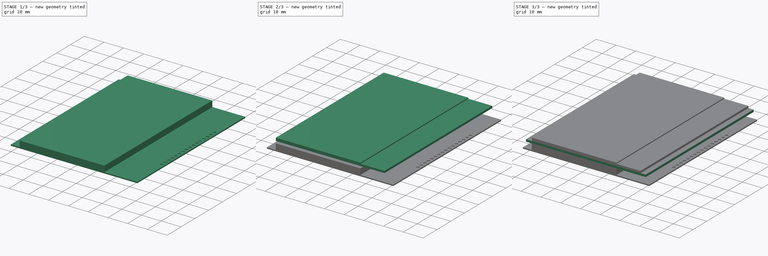
[diagram: build sequence overview — one tinted view per stage of 3, left to right]
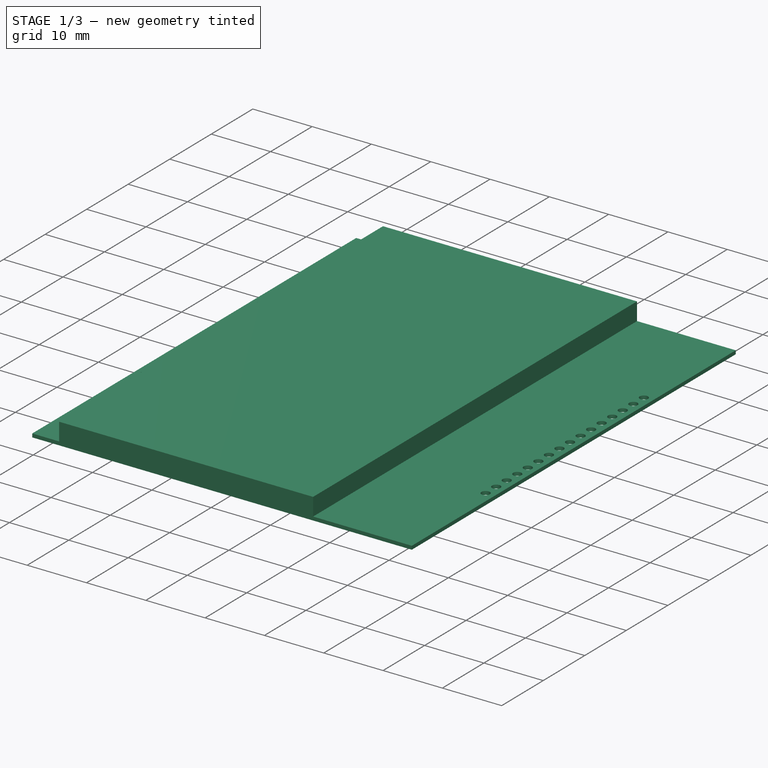
[diagram: stage 1 of 3 — iso view after this stage's code; geometry added in this stage tinted green]
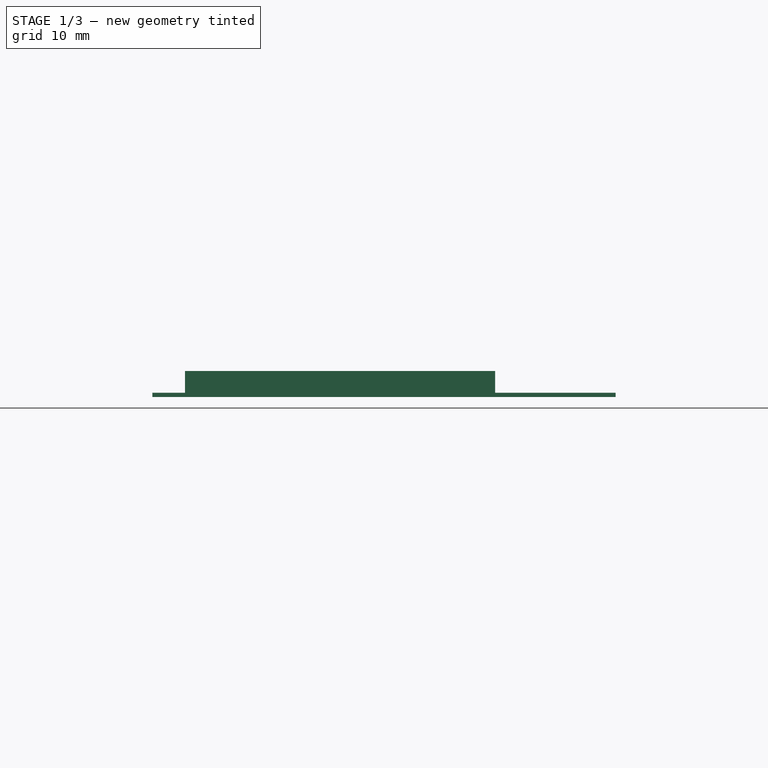
[diagram: stage 1 of 3 — front view after this stage's code; geometry added in this stage tinted green]
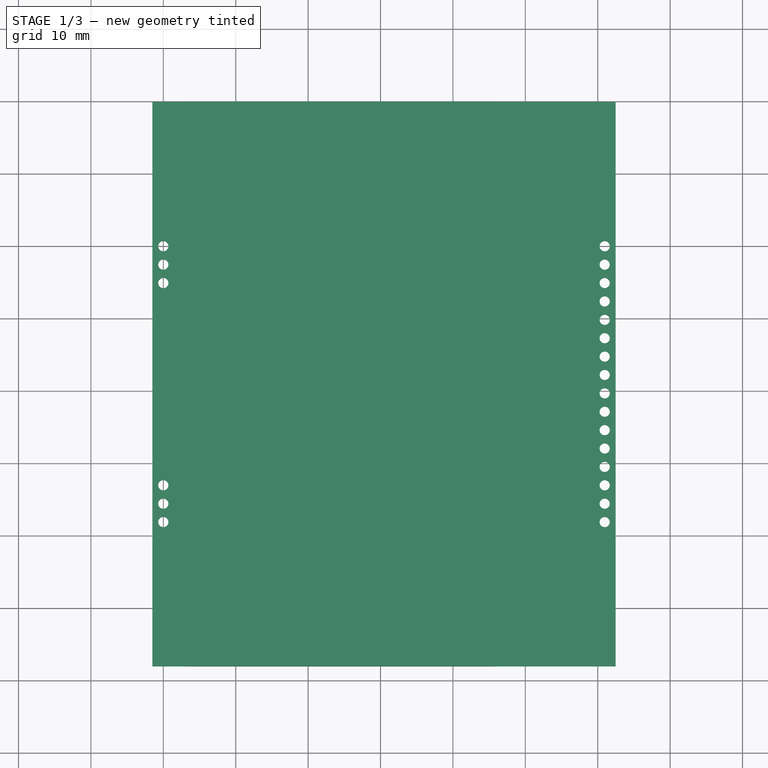
[diagram: stage 1 of 3 — top view after this stage's code; geometry added in this stage tinted green]
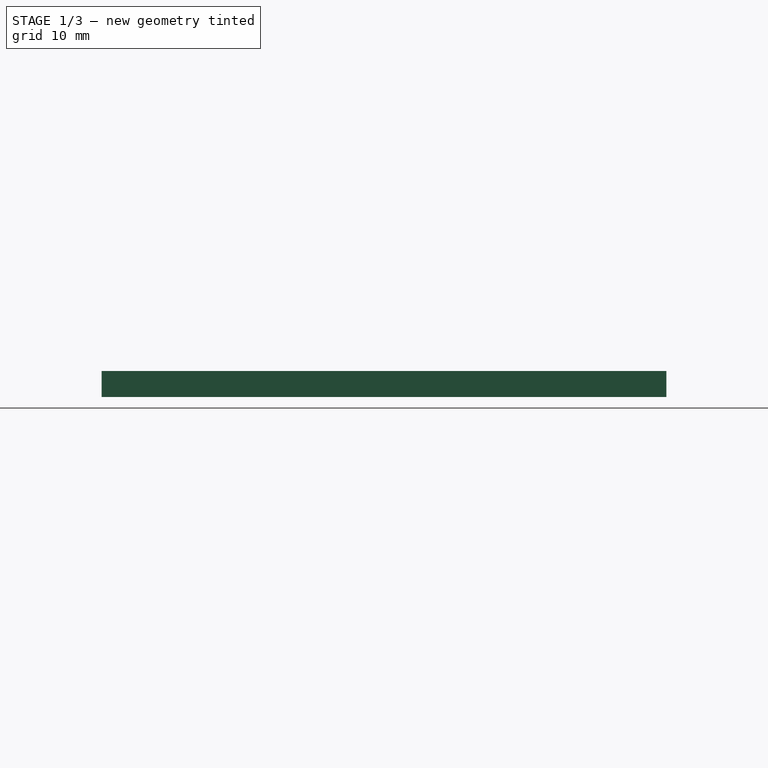
[diagram: stage 1 of 3 — right view after this stage's code; geometry added in this stage tinted green]
FCSTD DOCUMENT  (FreeCAD 0.17R11223 (Git))
Label: EA_DOGXL160-7_Backlight_3
License: Public Domain
LicenseURL: http://en.wikipedia.org/wiki/Public_domain
objects: Part::Feature×22, Part::Box×4, Sketcher::SketchObject×2, PartDesign::Pad×2, App::DocumentObjectGroup×1
note: 32 computed .brp shape members not serialized (recipe doc carries the construction recipe); baked Part::Feature solids carry a one-line shape summary decoded from their .brp

FEATURE [Sketcher::SketchObject] Sketch001
  MapMode = 5
  sketch-geometry (26):
    g0: LineSegment StartX=-1.52 StartY=19.95 StartZ=0 EndX=62.48 EndY=19.95 EndZ=0
    g1: LineSegment StartX=62.48 StartY=19.95 StartZ=0 EndX=62.48 EndY=-58.05 EndZ=0
    g2: LineSegment StartX=62.48 StartY=-58.05 StartZ=0 EndX=-1.52 EndY=-58.05 EndZ=0
    g3: LineSegment StartX=-1.52 StartY=-58.05 StartZ=0 EndX=-1.52 EndY=19.95 EndZ=0
    g4: Circle CenterX=0 CenterY=0 CenterZ=0 NormalX=0 NormalY=0 NormalZ=1 Radius=0.7
    g5: Circle CenterX=0 CenterY=-2.54 CenterZ=0 NormalX=0 NormalY=0 NormalZ=1 Radius=0.7
    g6: Circle CenterX=0 CenterY=-5.08 CenterZ=0 NormalX=0 NormalY=0 NormalZ=1 Radius=0.7
    g7: Circle CenterX=0 CenterY=-33.02 CenterZ=0 NormalX=0 NormalY=0 NormalZ=1 Radius=0.7
    g8: Circle CenterX=0 CenterY=-35.56 CenterZ=0 NormalX=0 NormalY=0 NormalZ=1 Radius=0.7
    g9: Circle CenterX=0 CenterY=-38.1 CenterZ=0 NormalX=0 NormalY=0 NormalZ=1 Radius=0.7
    g10: Circle CenterX=60.96 CenterY=-38.1 CenterZ=0 NormalX=0 NormalY=0 NormalZ=1 Radius=0.7
    g11: Circle CenterX=60.96 CenterY=-35.56 CenterZ=0 NormalX=0 NormalY=0 NormalZ=1 Radius=0.7
    g12: Circle CenterX=60.96 CenterY=-33.02 CenterZ=0 NormalX=0 NormalY=0 NormalZ=1 Radius=0.7
    g13: Circle CenterX=60.96 CenterY=-30.48 CenterZ=0 NormalX=0 NormalY=0 NormalZ=1 Radius=0.7
    g14: Circle CenterX=60.96 CenterY=-27.94 CenterZ=0 NormalX=0 NormalY=0 NormalZ=1 Radius=0.7
    g15: Circle CenterX=60.96 CenterY=-25.4 CenterZ=0 NormalX=0 NormalY=0 NormalZ=1 Radius=0.7
    g16: Circle CenterX=60.96 CenterY=-22.86 CenterZ=0 NormalX=0 NormalY=0 NormalZ=1 Radius=0.7
    g17: Circle CenterX=60.96 CenterY=0 CenterZ=0 NormalX=0 NormalY=0 NormalZ=1 Radius=0.7
    g18: Circle CenterX=60.96 CenterY=-10.16 CenterZ=0 NormalX=0 NormalY=0 NormalZ=1 Radius=0.7
    g19: Circle CenterX=60.96 CenterY=-12.7 CenterZ=0 NormalX=0 NormalY=0 NormalZ=1 Radius=0.7
    g20: Circle CenterX=60.96 CenterY=-2.54 CenterZ=0 NormalX=0 NormalY=0 NormalZ=1 Radius=0.7
    g21: Circle CenterX=60.96 CenterY=-20.32 CenterZ=0 NormalX=0 NormalY=0 NormalZ=1 Radius=0.7
    g22: Circle CenterX=60.96 CenterY=-5.08 CenterZ=0 NormalX=0 NormalY=0 NormalZ=1 Radius=0.7
    g23: Circle CenterX=60.96 CenterY=-7.62 CenterZ=0 NormalX=0 NormalY=0 NormalZ=1 Radius=0.7
    g24: Circle CenterX=60.96 CenterY=-15.24 CenterZ=0 NormalX=0 NormalY=0 NormalZ=1 Radius=0.7
    g25: Circle CenterX=60.96 CenterY=-17.78 CenterZ=0 NormalX=0 NormalY=0 NormalZ=1 Radius=0.7
  constraints (74):
    c: Coincident(g0,g1)
    c: Coincident(g1,g2)
    c: Coincident(g2,g3)
    c: Coincident(g3,g0)
    c: Horizontal(g0)
    c: Horizontal(g2)
    c: Vertical(g1)
    c: Vertical(g3)
    c: DistanceX(g0,g0) = 64
    c: DistanceY(g1,g0) = 78
    c: DistanceX(g0,g-1) = 1.52
    c: DistanceY(g-1,g0) = 19.95
    c: PointOnObject(g4,g-1)
    c: Radius(g4) = 0.7
    c: DistanceX(g-1,g4) = 0
    c: Equal(g4, g5-g9) x5
    c: Equal(g4,g25)
    c: Equal(g4,g24)
    c: Equal(g4,g23)
    c: Equal(g4,g22)
    c: Equal(g4,g21)
    c: Equal(g4,g20)
    c: Equal(g4,g19)
    c: Equal(g4,g18)
    c: Equal(g4,g17)
    c: Equal(g4,g16)
    c: Equal(g4,g15)
    c: Equal(g4,g14)
    c: Equal(g4,g13)
    c: Equal(g4,g12)
    c: Equal(g4,g11)
    c: Equal(g4,g10)
    c: DistanceX(g-1,g5) = 0
    c: DistanceX(g-1,g6) = 0
    c: DistanceX(g-1,g7) = 0
    c: DistanceX(g-1,g8) = 0
    c: DistanceX(g-1,g9) = 0
    c: DistanceY(g9,g-1) = 38.1
    c: DistanceY(g8,g-1) = 35.56
    c: DistanceY(g7,g-1) = 33.02
    c: DistanceY(g10,g-1) = 38.1
    c: DistanceY(g11,g-1) = 35.56
    c: DistanceY(g12,g-1) = 33.02
    c: DistanceY(g13,g-1) = 30.48
    c: DistanceY(g14,g-1) = 27.94
    c: DistanceY(g15,g-1) = 25.4
    c: DistanceY(g16,g-1) = 22.86
    c: DistanceY(g21,g-1) = 20.32
    c: DistanceY(g25,g-1) = 17.78
    c: DistanceY(g24,g-1) = 15.24
    c: DistanceY(g20,g-1) = 2.54
    c: DistanceY(g17,g-1) = 0
    c: DistanceY(g22,g-1) = 5.08
    c: DistanceY(g23,g-1) = 7.62
    c: DistanceY(g18,g-1) = 10.16
    c: DistanceY(g19,g-1) = 12.7
    c: DistanceX(g-1,g17) = 60.96
    c: DistanceX(g-1,g20) = 60.96
    c: DistanceX(g-1,g22) = 60.96
    c: DistanceX(g-1,g23) = 60.96
    c: DistanceX(g-1,g18) = 60.96
    c: DistanceX(g-1,g19) = 60.96
    c: DistanceX(g-1,g24) = 60.96
    c: DistanceX(g-1,g25) = 60.96
    c: DistanceX(g-1,g21) = 60.96
    c: DistanceX(g-1,g16) = 60.96
    c: DistanceX(g-1,g15) = 60.96
    c: DistanceX(g-1,g14) = 60.96
    c: DistanceX(g-1,g13) = 60.96
    c: DistanceX(g-1,g12) = 60.96
    c: DistanceX(g-1,g11) = 60.96
    c: DistanceX(g-1,g10) = 60.96
    c: DistanceY(g5,g-1) = 2.54
    c: DistanceY(g6,g-1) = 5.08
FEATURE [PartDesign::Pad] Pad001
  Length = 0.6
  Length2 = 100
  Profile = -> Sketch001
  Type = 0
FEATURE [Part::Box] Box003  label="Kub"
  AttacherType = Attacher::AttachEngine3D
  Height = 3
  Length = 42.833
  Placement = pos=(3,-58.05,0.6) rot=(0,0,1;0rad)
  Width = 78
FEATURE [Part::Feature] Part__Feature  label="Legg001"
  Placement = pos=(0.12,0.65,3.3) rot=(1,0,0;1.5708rad)
  shape: bbox 2.411 x 1.3 x 8.9 mm, 19 faces (baked)
FEATURE [Part::Feature] Part__Feature059  label="Legg028"
  Placement = pos=(60.84,-10.76,3.3) rot=(0,0.707107,0.707107;3.14159rad)
  shape: bbox 2.411 x 1.3 x 8.9 mm, 19 faces (baked)
FEATURE [Part::Feature] Part__Feature050  label="Legg019"
  Placement = pos=(60.84,-33.62,3.3) rot=(0,0.707107,0.707107;3.14159rad)
  shape: bbox 2.411 x 1.3 x 8.9 mm, 19 faces (baked)
FEATURE [Part::Feature] Part__Feature051  label="Legg020"
  Placement = pos=(60.84,-31.08,3.3) rot=(0,0.707107,0.707107;3.14159rad)
  shape: bbox 2.411 x 1.3 x 8.9 mm, 19 faces (baked)
FEATURE [Part::Feature] Part__Feature049  label="Legg018"
  Placement = pos=(60.84,-36.16,3.3) rot=(0,0.707107,0.707107;3.14159rad)
  shape: bbox 2.411 x 1.3 x 8.9 mm, 19 faces (baked)
FEATURE [Part::Feature] Part__Feature058  label="Legg027"
  Placement = pos=(60.84,-13.3,3.3) rot=(0,0.707107,0.707107;3.14159rad)
  shape: bbox 2.411 x 1.3 x 8.9 mm, 19 faces (baked)
FEATURE [Part::Feature] Part__Feature063  label="Legg032"
  Placement = pos=(60.84,-0.4,3.3) rot=(0,0.707107,0.707107;3.14159rad)
  shape: bbox 2.411 x 1.3 x 8.9 mm, 19 faces (baked)
FEATURE [Part::Feature] Part__Feature043  label="Legg002"
  Placement = pos=(0.12,-1.89,3.3) rot=(1,0,0;1.5708rad)
  shape: bbox 2.411 x 1.3 x 8.9 mm, 19 faces (baked)
FEATURE [Part::Feature] Part__Feature047  label="Legg016"
  Placement = pos=(0.12,-37.45,3.3) rot=(1,0,0;1.5708rad)
  shape: bbox 2.411 x 1.3 x 8.9 mm, 19 faces (baked)
FEATURE [Part::Feature] Part__Feature048  label="Legg017"
  Placement = pos=(60.84,-38.7,3.3) rot=(0,0.707107,0.707107;3.14159rad)
  shape: bbox 2.411 x 1.3 x 8.9 mm, 19 faces (baked)
FEATURE [Part::Feature] Part__Feature062  label="Legg031"
  Placement = pos=(60.84,-3.14,3.3) rot=(0,0.707107,0.707107;3.14159rad)
  shape: bbox 2.411 x 1.3 x 8.9 mm, 19 faces (baked)
FEATURE [Part::Feature] Part__Feature055  label="Legg024"
  Placement = pos=(60.84,-20.92,3.3) rot=(0,0.707107,0.707107;3.14159rad)
  shape: bbox 2.411 x 1.3 x 8.9 mm, 19 faces (baked)
FEATURE [Part::Feature] Part__Feature060  label="Legg029"
  Placement = pos=(60.84,-8.22,3.3) rot=(0,0.707107,0.707107;3.14159rad)
  shape: bbox 2.411 x 1.3 x 8.9 mm, 19 faces (baked)
FEATURE [Part::Feature] Part__Feature053  label="Legg022"
  Placement = pos=(60.84,-26,3.3) rot=(0,0.707107,0.707107;3.14159rad)
  shape: bbox 2.411 x 1.3 x 8.9 mm, 19 faces (baked)
FEATURE [Part::Feature] Part__Feature044  label="Legg003"
  Placement = pos=(0.12,-4.43,3.3) rot=(1,0,0;1.5708rad)
  shape: bbox 2.411 x 1.3 x 8.9 mm, 19 faces (baked)
FEATURE [Part::Feature] Part__Feature054  label="Legg023"
  Placement = pos=(60.84,-23.46,3.3) rot=(0,0.707107,0.707107;3.14159rad)
  shape: bbox 2.411 x 1.3 x 8.9 mm, 19 faces (baked)
FEATURE [Part::Feature] Part__Feature056  label="Legg025"
  Placement = pos=(60.84,-18.38,3.3) rot=(0,0.707107,0.707107;3.14159rad)
  shape: bbox 2.411 x 1.3 x 8.9 mm, 19 faces (baked)
FEATURE [Part::Feature] Part__Feature045  label="Legg014"
  Placement = pos=(0.12,-32.37,3.3) rot=(1,0,0;1.5708rad)
  shape: bbox 2.411 x 1.3 x 8.9 mm, 19 faces (baked)
FEATURE [Part::Feature] Part__Feature046  label="Legg015"
  Placement = pos=(0.12,-34.91,3.3) rot=(1,0,0;1.5708rad)
  shape: bbox 2.411 x 1.3 x 8.9 mm, 19 faces (baked)
FEATURE [Part::Feature] Part__Feature057  label="Legg026"
  Placement = pos=(60.84,-15.84,3.3) rot=(0,0.707107,0.707107;3.14159rad)
  shape: bbox 2.411 x 1.3 x 8.9 mm, 19 faces (baked)
FEATURE [Part::Feature] Part__Feature061  label="Legg030"
  Placement = pos=(60.84,-5.68,3.3) rot=(0,0.707107,0.707107;3.14159rad)
  shape: bbox 2.411 x 1.3 x 8.9 mm, 19 faces (baked)
FEATURE [Part::Feature] Part__Feature052  label="Legg021"
  Placement = pos=(60.84,-28.54,3.3) rot=(0,0.707107,0.707107;3.14159rad)
  shape: bbox 2.411 x 1.3 x 8.9 mm, 19 faces (baked)
FEATURE [App::DocumentObjectGroup] Grupp001  label="Leggs"
  Group = -> [Part__Feature,Part__Feature043,Part__Feature044,Part__Feature045,Part__Feature046,Part__Feature047,Part__Feature048,Part__Feature049,Part__Feature050,Part__Feature051,Part__Feature052,Part__Feature053,Part__Feature054,Part__Feature055,Part__Feature056,Part__Feature057,Part__Feature058,Part__Feature059,Part__Feature060,Part__Feature061,Part__Feature062,Part__Feature063]
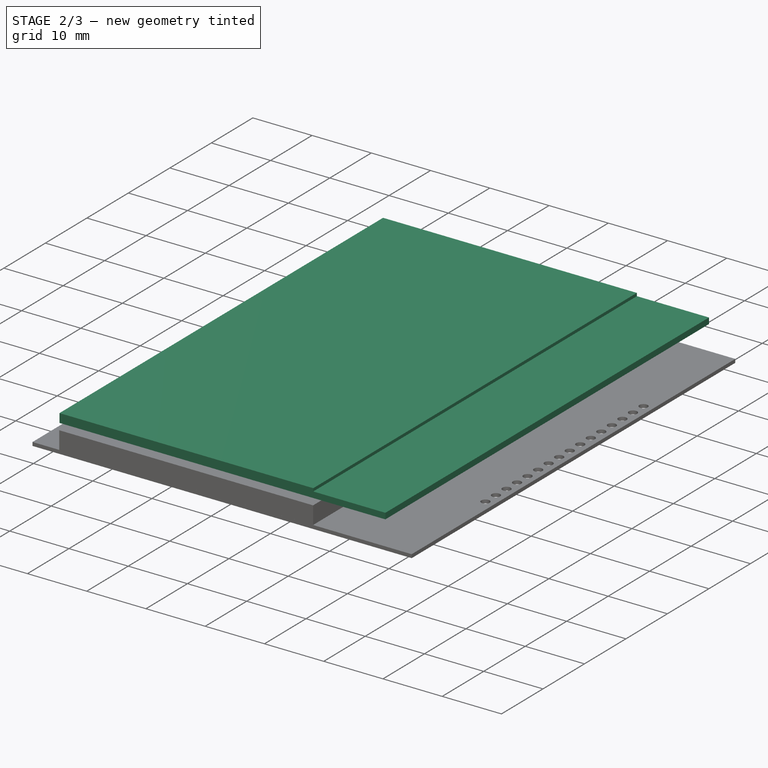
[diagram: stage 2 of 3 — iso view after this stage's code; geometry added in this stage tinted green]
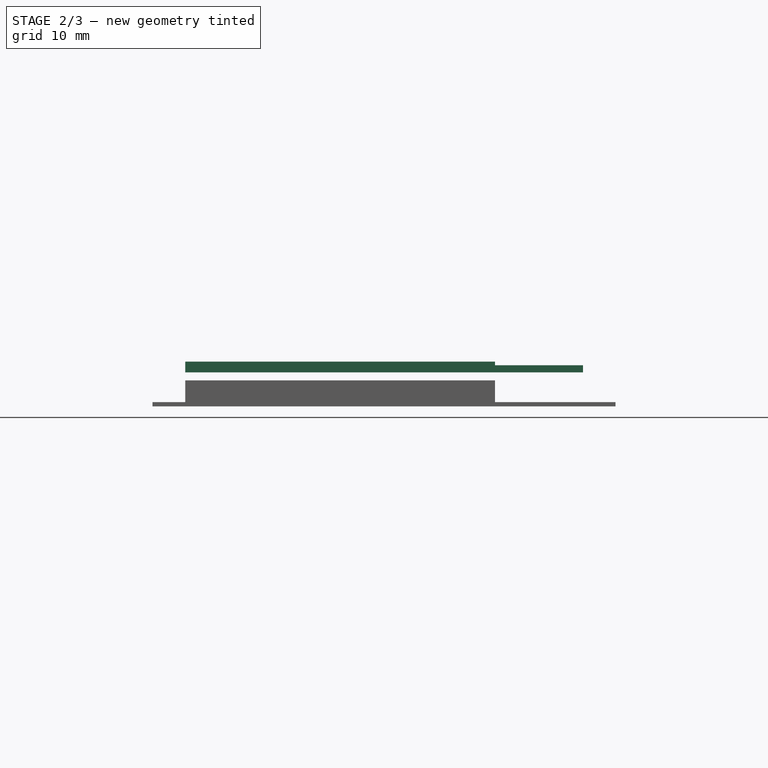
[diagram: stage 2 of 3 — front view after this stage's code; geometry added in this stage tinted green]
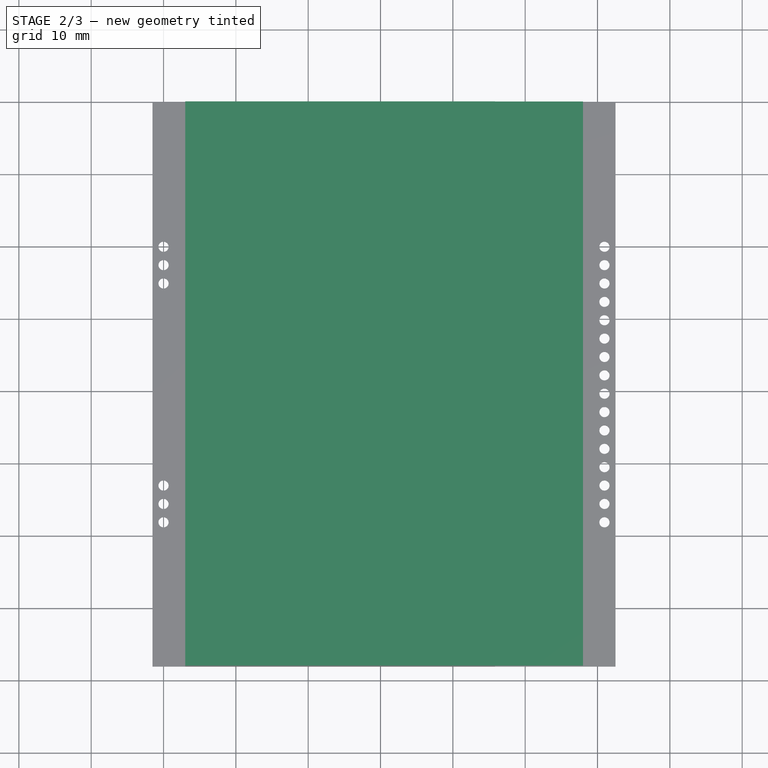
[diagram: stage 2 of 3 — top view after this stage's code; geometry added in this stage tinted green]
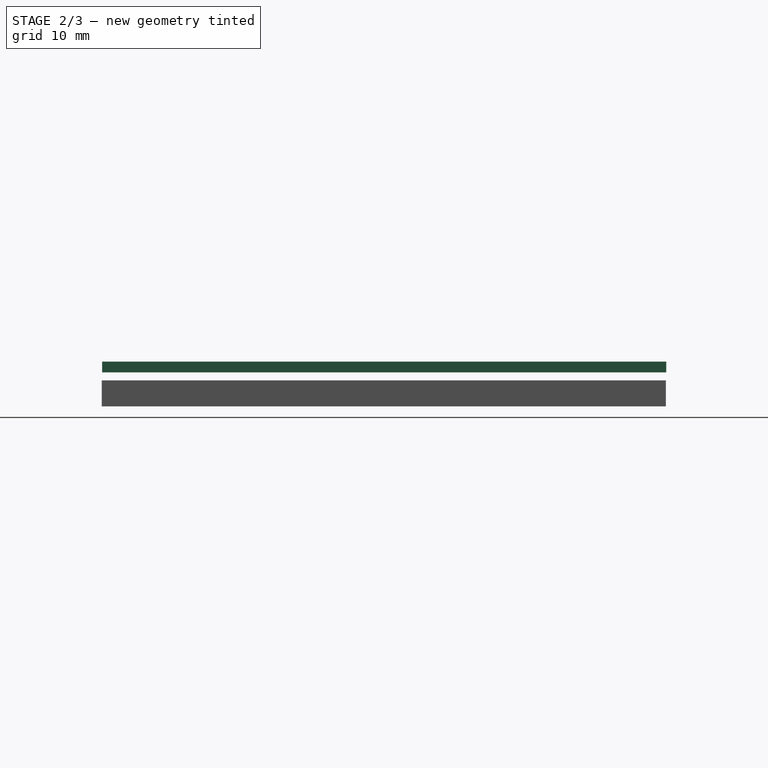
[diagram: stage 2 of 3 — right view after this stage's code; geometry added in this stage tinted green]
FEATURE [Part::Box] Box001  label="Display1"
  AttacherType = Attacher::AttachEngine3D
  Height = 1
  Length = 78
  Placement = pos=(3,20,4.7) rot=(0,0,-1;1.5708rad)
  Width = 55
FEATURE [Part::Box] Box002  label="Display2"
  AttacherType = Attacher::AttachEngine3D
  Height = 0.5
  Length = 78
  Placement = pos=(3,20,5.7) rot=(0,0,-1;1.5708rad)
  Width = 42.833
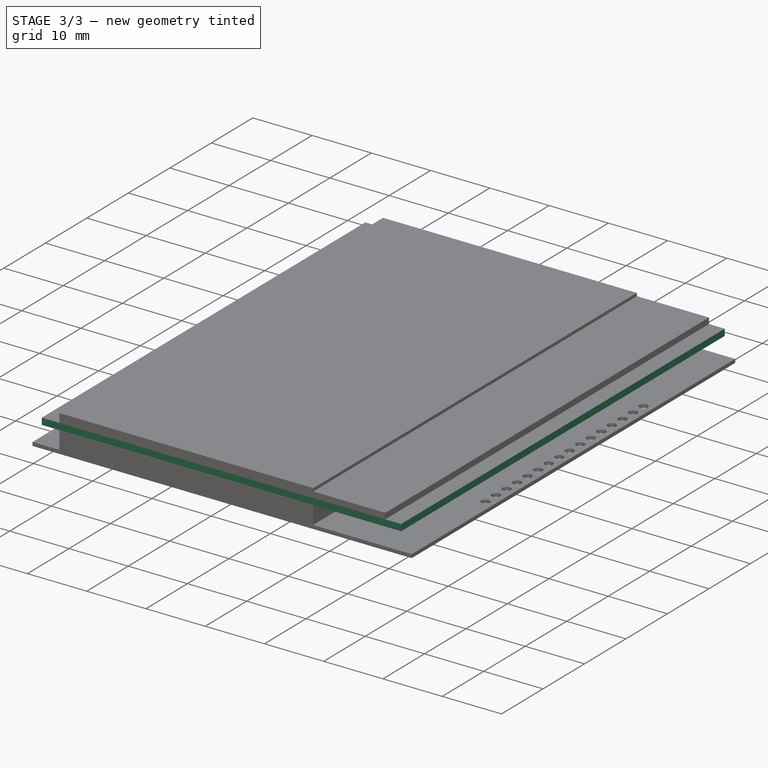
[diagram: stage 3 of 3 — iso view after this stage's code; geometry added in this stage tinted green]
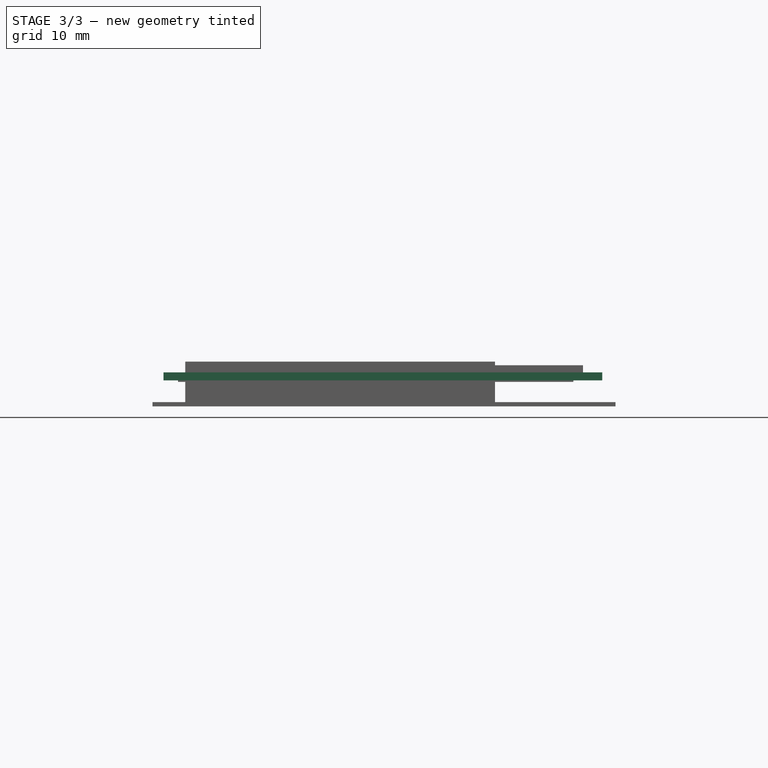
[diagram: stage 3 of 3 — front view after this stage's code; geometry added in this stage tinted green]
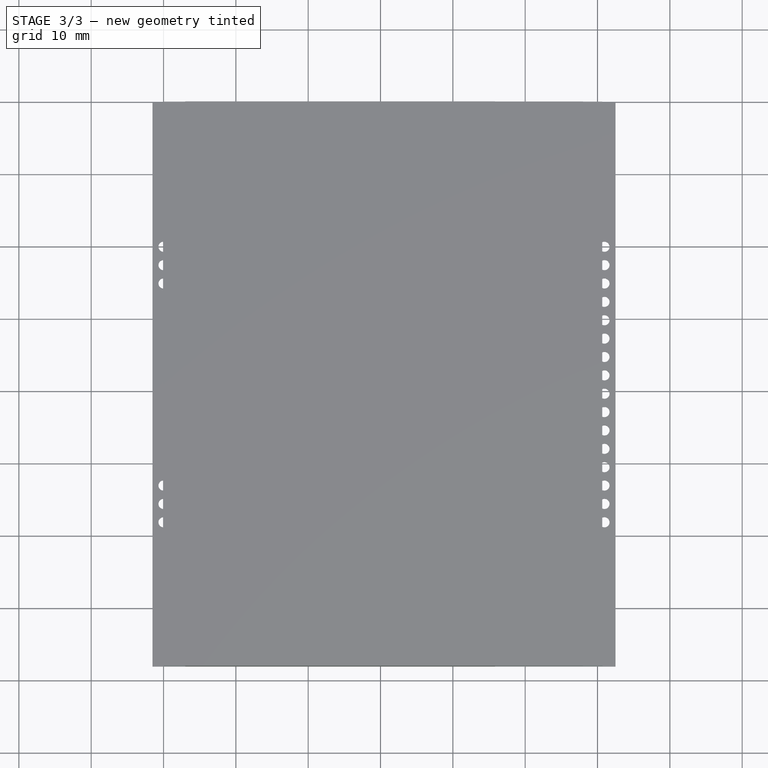
[diagram: stage 3 of 3 — top view after this stage's code; geometry added in this stage tinted green]
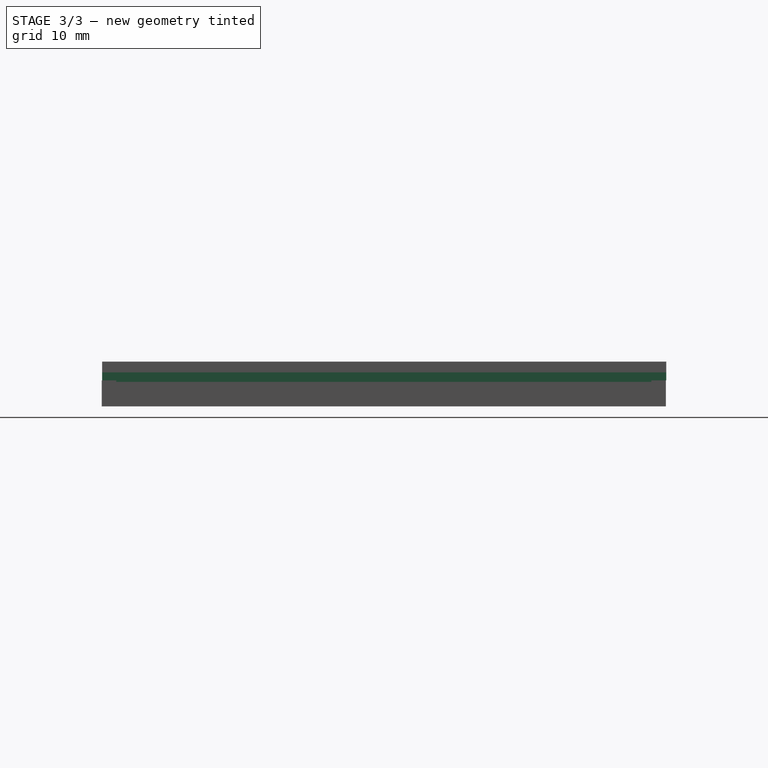
[diagram: stage 3 of 3 — right view after this stage's code; geometry added in this stage tinted green]
FEATURE [Sketcher::SketchObject] Sketch
  MapMode = 5
  Placement = pos=(0,20,3.6) rot=(0,0,-1;1.5708rad)
  sketch-geometry (4):
    g0: LineSegment StartX=0 StartY=60.66 StartZ=0 EndX=78 EndY=60.66 EndZ=0
    g1: LineSegment StartX=78 StartY=60.66 StartZ=0 EndX=78 EndY=0 EndZ=0
    g2: LineSegment StartX=78 StartY=0 StartZ=0 EndX=0 EndY=0 EndZ=0
    g3: LineSegment StartX=0 StartY=0 StartZ=0 EndX=0 EndY=60.66 EndZ=0
  constraints (12):
    c: Coincident(g0,g1)
    c: Coincident(g1,g2)
    c: Coincident(g2,g3)
    c: Coincident(g3,g0)
    c: Horizontal(g0)
    c: Horizontal(g2)
    c: Vertical(g1)
    c: Vertical(g3)
    c: DistanceY(g1,g0) = 60.66
    c: DistanceX(g-1,g1) = 78
    c: DistanceY(g-1,g2) = 0
    c: DistanceX(g2,g-1) = 0
FEATURE [PartDesign::Pad] Pad  label="Base"
  Length = 1.1
  Length2 = 100
  Placement = pos=(0,20,3.6) rot=(0,0,-1;1.5708rad)
  Profile = -> Sketch
  Type = 0
FEATURE [Part::Box] Box  label="Backside"
  AttacherType = Attacher::AttachEngine3D
  Height = 0.2
  Length = 74
  Placement = pos=(2,17.95,3.4) rot=(0,0,-1;1.5708rad)
  Width = 54.66
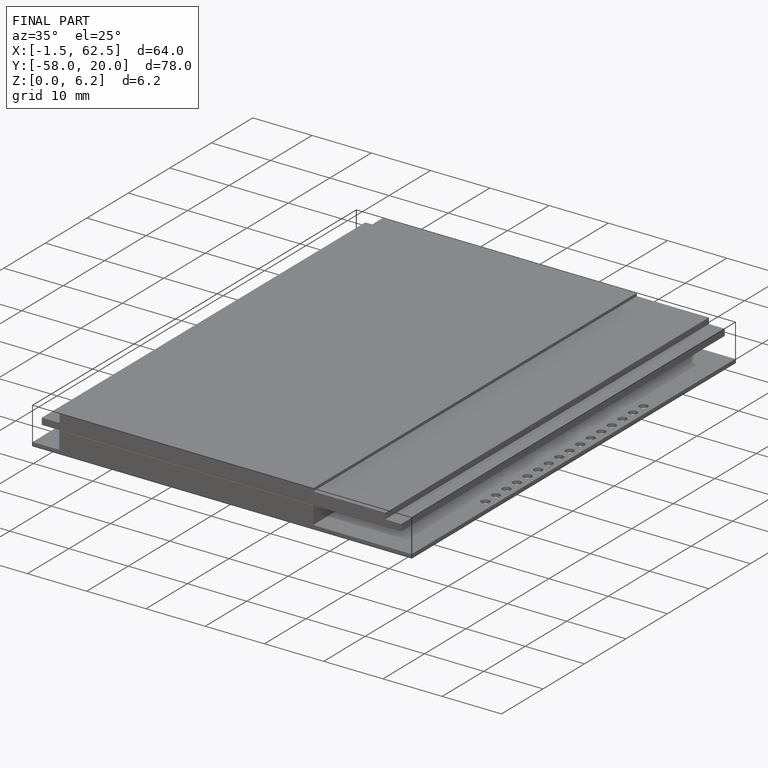
[diagram: finished part — iso view with bounding-box wireframe]
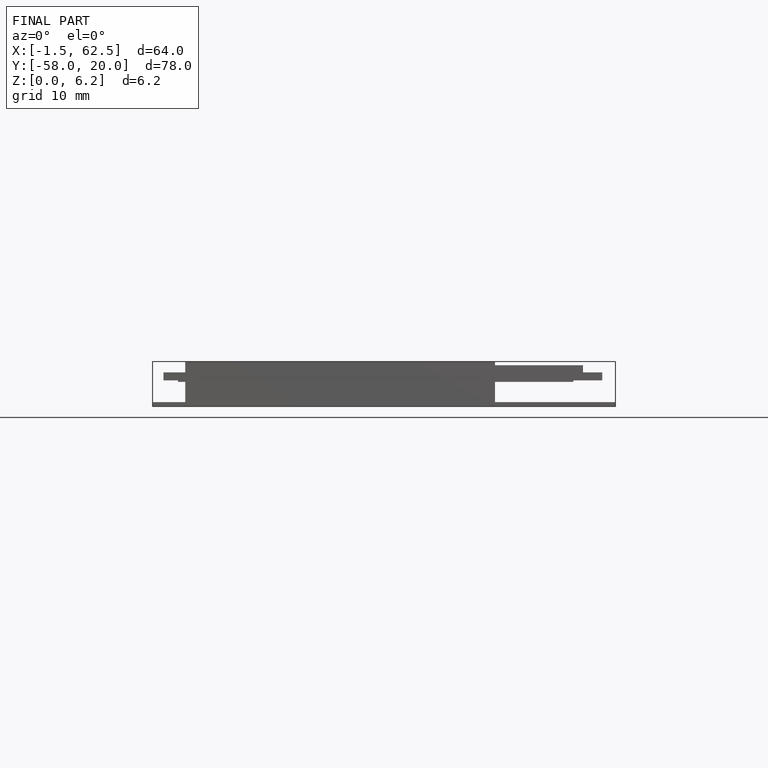
[diagram: finished part — front view with bounding-box wireframe]
